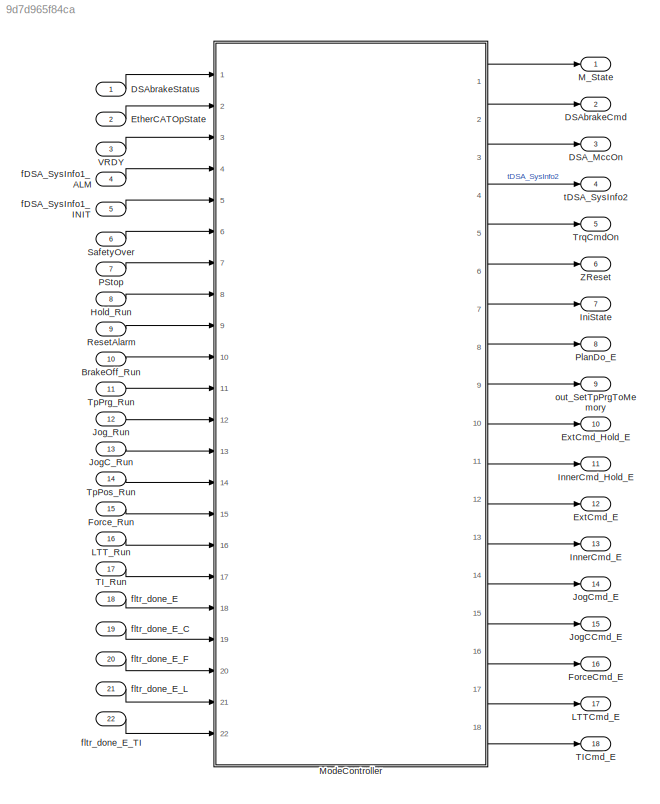
MODEL slx_9d7d965f84ca
KIND model
CONFIG AbsTol = auto
CONFIG FixedStep = si.itp
CONFIG MaxStep = auto
CONFIG MinStep = auto
CONFIG RelTol = 1e-3
CONFIG SampleTimeConstraint = Unconstrained
CONFIG Solver = FixedStepDiscrete
CONFIG SolverMode = Auto
CONFIG SolverName = FixedStepDiscrete
CONFIG StartTime = 0.0
CONFIG StopTime = 10.0
BLOCK [Inport] BrakeOff_Run
  IconDisplay = Port number
  Port = 10
BLOCK [Outport] DSA_MccOn
  IconDisplay = Port number
  Port = 3
BLOCK [Outport] DSAbrakeCmd
  IconDisplay = Port number
  Port = 2
BLOCK [Inport] DSAbrakeStatus
  IconDisplay = Port number
BLOCK [Inport] EtherCATOpState
  IconDisplay = Port number
  Port = 2
BLOCK [Outport] ExtCmd_E
  IconDisplay = Port number
  Port = 12
BLOCK [Outport] ExtCmd_Hold_E
  IconDisplay = Port number
  Port = 10
BLOCK [Outport] ForceCmd_E
  IconDisplay = Port number
  Port = 16
BLOCK [Inport] Force_Run
  IconDisplay = Port number
  Port = 15
BLOCK [Inport] Hold_Run
  IconDisplay = Port number
  Port = 8
BLOCK [Outport] IniState
  IconDisplay = Port number
  Port = 7
BLOCK [Outport] InnerCmd_E
  IconDisplay = Port number
  Port = 13
BLOCK [Outport] InnerCmd_Hold_E
  IconDisplay = Port number
  Port = 11
BLOCK [Outport] JogCCmd_E
  IconDisplay = Port number
  Port = 15
BLOCK [Inport] JogC_Run
  IconDisplay = Port number
  Port = 13
BLOCK [Outport] JogCmd_E
  IconDisplay = Port number
  Port = 14
BLOCK [Inport] Jog_Run
  IconDisplay = Port number
  Port = 12
BLOCK [Outport] LTTCmd_E
  IconDisplay = Port number
  Port = 17
BLOCK [Inport] LTT_Run
  IconDisplay = Port number
  Port = 16
BLOCK [Outport] M_State
  IconDisplay = Port number
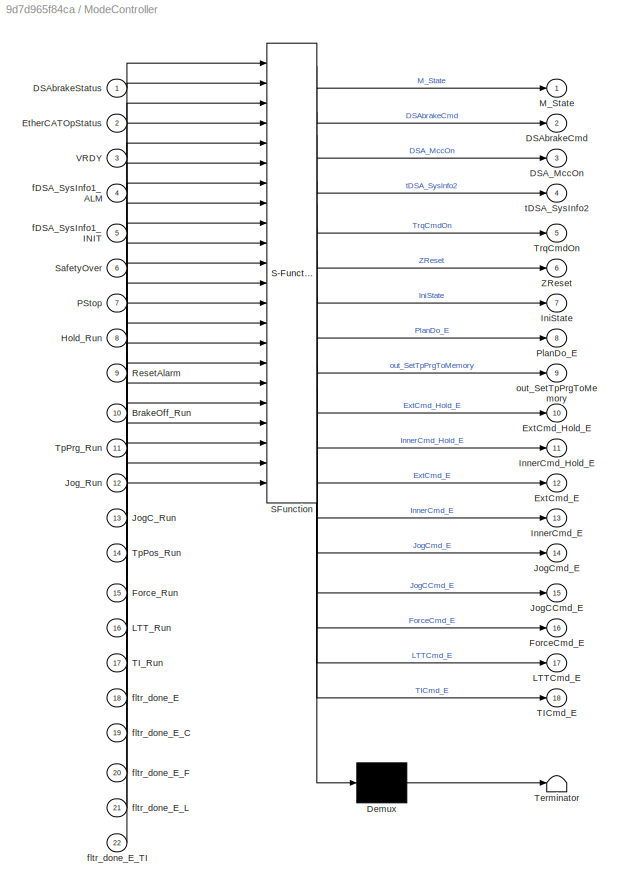
BLOCK [SubSystem] ModeController
  ErrorFcn = Stateflow.Translate.translate
  PermitHierarchicalResolution = ExplicitOnly
  Ports = [22, 18]
  RequestExecContextInheritance = off
  SFBlockType = Chart
  TreatAsAtomicUnit = on
  Variant = off
BLOCK [Demux] ModeController/ Demux 
  Outputs = 1
  Ports = [1, 1]
BLOCK [S-Function] ModeController/ SFunction 
  EnableBusSupport = on
  FunctionName = sf_sfun
  PortCounts = [22 19]
  Ports = [22, 19]
  SFunctionDeploymentMode = off
  Tag = Stateflow S-Function LRMate200Experimentor_ModeController 1
BLOCK [Terminator] ModeController/ Terminator 
BLOCK [Inport] ModeController/BrakeOff_Run
  IconDisplay = Port number
  Port = 10
BLOCK [Outport] ModeController/DSA_MccOn
  IconDisplay = Port number
  Port = 3
BLOCK [Outport] ModeController/DSAbrakeCmd
  IconDisplay = Port number
  Port = 2
BLOCK [Inport] ModeController/DSAbrakeStatus
  IconDisplay = Port number
BLOCK [Inport] ModeController/EtherCATOpStatus
  IconDisplay = Port number
  Port = 2
BLOCK [Outport] ModeController/ExtCmd_E
  IconDisplay = Port number
  Port = 12
BLOCK [Outport] ModeController/ExtCmd_Hold_E
  IconDisplay = Port number
  Port = 10
BLOCK [Outport] ModeController/ForceCmd_E
  IconDisplay = Port number
  Port = 16
BLOCK [Inport] ModeController/Force_Run
  IconDisplay = Port number
  Port = 15
BLOCK [Inport] ModeController/Hold_Run
  IconDisplay = Port number
  Port = 8
BLOCK [Outport] ModeController/IniState
  IconDisplay = Port number
  Port = 7
BLOCK [Outport] ModeController/InnerCmd_E
  IconDisplay = Port number
  Port = 13
BLOCK [Outport] ModeController/InnerCmd_Hold_E
  IconDisplay = Port number
  Port = 11
BLOCK [Outport] ModeController/JogCCmd_E
  IconDisplay = Port number
  Port = 15
BLOCK [Inport] ModeController/JogC_Run
  IconDisplay = Port number
  Port = 13
BLOCK [Outport] ModeController/JogCmd_E
  IconDisplay = Port number
  Port = 14
BLOCK [Inport] ModeController/Jog_Run
  IconDisplay = Port number
  Port = 12
BLOCK [Outport] ModeController/LTTCmd_E
  IconDisplay = Port number
  Port = 17
BLOCK [Inport] ModeController/LTT_Run
  IconDisplay = Port number
  Port = 16
BLOCK [Outport] ModeController/M_State
  IconDisplay = Port number
BLOCK [Inport] ModeController/PStop
  IconDisplay = Port number
  Port = 7
BLOCK [Outport] ModeController/PlanDo_E
  IconDisplay = Port number
  Port = 8
BLOCK [Inport] ModeController/ResetAlarm
  IconDisplay = Port number
  Port = 9
BLOCK [Inport] ModeController/SafetyOver
  IconDisplay = Port number
  Port = 6
BLOCK [Outport] ModeController/TICmd_E
  IconDisplay = Port number
  Port = 18
BLOCK [Inport] ModeController/TI_Run
  IconDisplay = Port number
  Port = 17
BLOCK [Inport] ModeController/TpPos_Run
  IconDisplay = Port number
  Port = 14
BLOCK [Inport] ModeController/TpPrg_Run
  IconDisplay = Port number
  Port = 11
BLOCK [Outport] ModeController/TrqCmdOn
  IconDisplay = Port number
  Port = 5
BLOCK [Inport] ModeController/VRDY
  IconDisplay = Port number
  Port = 3
BLOCK [Outport] ModeController/ZReset
  IconDisplay = Port number
  Port = 6
BLOCK [Inport] ModeController/fDSA_SysInfo1_ALM
  IconDisplay = Port number
  Port = 4
BLOCK [Inport] ModeController/fDSA_SysInfo1_INIT
  IconDisplay = Port number
  Port = 5
BLOCK [Inport] ModeController/fltr_done_E
  IconDisplay = Port number
  Port = 18
BLOCK [Inport] ModeController/fltr_done_E_C
  IconDisplay = Port number
  Port = 19
BLOCK [Inport] ModeController/fltr_done_E_F
  IconDisplay = Port number
  Port = 20
BLOCK [Inport] ModeController/fltr_done_E_L
  IconDisplay = Port number
  Port = 21
BLOCK [Inport] ModeController/fltr_done_E_TI
  IconDisplay = Port number
  Port = 22
BLOCK [Outport] ModeController/out_SetTpPrgToMemory
  IconDisplay = Port number
  Port = 9
BLOCK [Outport] ModeController/tDSA_SysInfo2
  IconDisplay = Port number
  Port = 4
BLOCK [Inport] PStop
  IconDisplay = Port number
  Port = 7
BLOCK [Outport] PlanDo_E
  IconDisplay = Port number
  Port = 8
BLOCK [Inport] ResetAlarm
  IconDisplay = Port number
  Port = 9
BLOCK [Inport] SafetyOver
  IconDisplay = Port number
  Port = 6
BLOCK [Outport] TICmd_E
  IconDisplay = Port number
  Port = 18
BLOCK [Inport] TI_Run
  IconDisplay = Port number
  Port = 17
BLOCK [Inport] TpPos_Run
  IconDisplay = Port number
  Port = 14
BLOCK [Inport] TpPrg_Run
  IconDisplay = Port number
  Port = 11
BLOCK [Outport] TrqCmdOn
  IconDisplay = Port number
  Port = 5
BLOCK [Inport] VRDY
  IconDisplay = Port number
  Port = 3
BLOCK [Outport] ZReset
  IconDisplay = Port number
  Port = 6
BLOCK [Inport] fDSA_SysInfo1_ALM
  IconDisplay = Port number
  Port = 4
BLOCK [Inport] fDSA_SysInfo1_INIT
  IconDisplay = Port number
  Port = 5
BLOCK [Inport] fltr_done_E
  IconDisplay = Port number
  Port = 18
BLOCK [Inport] fltr_done_E_C
  IconDisplay = Port number
  Port = 19
BLOCK [Inport] fltr_done_E_F
  IconDisplay = Port number
  Port = 20
BLOCK [Inport] fltr_done_E_L
  IconDisplay = Port number
  Port = 21
BLOCK [Inport] fltr_done_E_TI
  IconDisplay = Port number
  Port = 22
BLOCK [Outport] out_SetTpPrgToMemory
  IconDisplay = Port number
  Port = 9
BLOCK [Outport] tDSA_SysInfo2
  IconDisplay = Port number
  Port = 4
LINE BrakeOff_Run:1 -> ModeController:10
LINE DSAbrakeStatus:1 -> ModeController:1
LINE EtherCATOpState:1 -> ModeController:2
LINE Force_Run:1 -> ModeController:15
LINE Hold_Run:1 -> ModeController:8
LINE JogC_Run:1 -> ModeController:13
LINE Jog_Run:1 -> ModeController:12
LINE LTT_Run:1 -> ModeController:16
LINE ModeController:1 -> M_State:1
LINE ModeController:10 -> ExtCmd_Hold_E:1
LINE ModeController:11 -> InnerCmd_Hold_E:1
LINE ModeController:12 -> ExtCmd_E:1
LINE ModeController:13 -> InnerCmd_E:1
LINE ModeController:14 -> JogCmd_E:1
LINE ModeController:15 -> JogCCmd_E:1
LINE ModeController:16 -> ForceCmd_E:1
LINE ModeController:17 -> LTTCmd_E:1
LINE ModeController:18 -> TICmd_E:1
LINE ModeController:2 -> DSAbrakeCmd:1
LINE ModeController:3 -> DSA_MccOn:1
LINE ModeController:4 -> tDSA_SysInfo2:1
LINE ModeController:5 -> TrqCmdOn:1
LINE ModeController:6 -> ZReset:1
LINE ModeController:7 -> IniState:1
LINE ModeController:8 -> PlanDo_E:1
LINE ModeController:9 -> out_SetTpPrgToMemory:1
LINE PStop:1 -> ModeController:7
LINE ResetAlarm:1 -> ModeController:9
LINE SafetyOver:1 -> ModeController:6
LINE TI_Run:1 -> ModeController:17
LINE TpPos_Run:1 -> ModeController:14
LINE TpPrg_Run:1 -> ModeController:11
LINE VRDY:1 -> ModeController:3
LINE fDSA_SysInfo1_ALM:1 -> ModeController:4
LINE fDSA_SysInfo1_INIT:1 -> ModeController:5
LINE fltr_done_E:1 -> ModeController:18
LINE fltr_done_E_C:1 -> ModeController:19
LINE fltr_done_E_F:1 -> ModeController:20
LINE fltr_done_E_L:1 -> ModeController:21
LINE fltr_done_E_TI:1 -> ModeController:22
CHART ModeController states=67 transitions=111
  STATE_LABEL 'Mode'
  STATE_LABEL 'WatingForEtherCATReady\nen:M_State=-95;\n    TrqCmdOn=0;\n    ZReset=1;\n    DSAbrakeCmd=0;\n    DSA_MccOn=0;'
  STATE_LABEL 'INIT_DataCommArea\nen: M_State=-93;\n     tDSA_SysInfo2=128;\n\n    '
  STATE_LABEL 'Pstop_State'
  STATE_LABEL 'Alarm\nen:M_State=-80;\n    TrqCmdOn=0;\n    ZReset=1;\n'
  STATE_LABEL 'BrakeOn\nen:M_State=-82;\n     DSAbrakeCmd=0;'
  STATE_LABEL 'MccOn\nen:M_State=-84;\n    DSA_MccOn=1;'
  STATE_LABEL 'MccOff\nen:\nM_State=-78;\nDSA_MccOn=0;'
  STATE_LABEL 'ResetAlarm1\nen: M_State=-91;\n     tDSA_SysInfo2=8;\n'
  STATE_LABEL 'ResetAlarm2\nen: M_State=-89;\n     tDSA_SysInfo2=0;\n\n\n    '
  STATE_LABEL '[fDSA_SysInfo1_ALM==0]'
  STATE_LABEL 'after(20,tick)'
  STATE_LABEL 'ResetAlarm_E'
  STATE_LABEL '[VRDY==1]'
  STATE_LABEL 'in_stroke'
  STATE_LABEL 'Jog_Stopping\nen:JogCmd_E;\nen:M_State=22;\n\n\n'
  STATE_LABEL 'BrakeOn\nen:M_State=4;\n     DSAbrakeCmd=0;\n    \n'
  STATE_LABEL 'Jogging\nen:JogCmd_E;\nen:M_State=21;\n'
  STATE_LABEL 'JoggingC\nen:JogCCmd_E;\nen:M_State=9921;\n'
  STATE_LABEL 'JogC_Stopping\nen:JogCCmd_E;\nen:M_State=9922;\n\n\n'
  STATE_LABEL 'TrqCmdOff\nen:M_State=1;\n    TrqCmdOn=0;\n    ZReset=1;'
  STATE_LABEL 'ForceControl_Stopping\nen:ForceCmd_E;\nen:M_State=9924;\n\n\n'
  STATE_LABEL 'ForceControl\nen:ForceCmd_E;\nen:M_State=9923;\n'
  STATE_LABEL 'BrakeOff'
  STATE_LABEL 'TrqCmdOn\nen: \n     M_State=2;\n    TrqCmdOn=1;\n    ZReset=0;\n'
  STATE_LABEL 'BrakeOff\nen: DSAbrakeCmd=1;\n      M_State=3;\n'
  STATE_LABEL 'after(1,tick)'
  STATE_LABEL '[DSAbrakeStatus==1]'
  STATE_LABEL 'after(50,tick)'
  STATE_LABEL 'LeadThroughTeaching\nen:LTTCmd_E;\nen:M_State=9925;\n'
  STATE_LABEL 'Waiting\nen:M_State=1099;\n'
  STATE_LABEL 'LTT_Stopping\nen:LTTCmd_E;\nen:M_State=9926;\n\n\n'
  STATE_LABEL 'TiltInsertion\nen:TICmd_E;\nen:M_State=9927;\n'
  STATE_LABEL 'SetTpPos\n\nen:  out_SetTpPrgToMemory;'
  STATE_LABEL 'TI_Stopping1\nen:TICmd_E;\nen:M_State=9928;\n\n\n'
  STATE_LABEL 'IniPosMove_Running1\n\nen: PlanDo_E;\n     InnerCmd_E;\n     IniState = 1;\n     M_State=9931;\n  \n'
  STATE_LABEL 'SetTpPrg\n\nen:  out_SetTpPrgToMemory;'
  STATE_LABEL 'IniPosMove_Running\n\nen: PlanDo_E;\n     InnerCmd_E;\n     IniState = 0;\n     M_State=31;\n  \n'
  STATE_LABEL 'Hold_Running\nen: \n     M_State=40;\n     '
  STATE_LABEL 'TpPrg__Running\nen: \n     M_State=33;\n     ExtCmd_E;\n'
